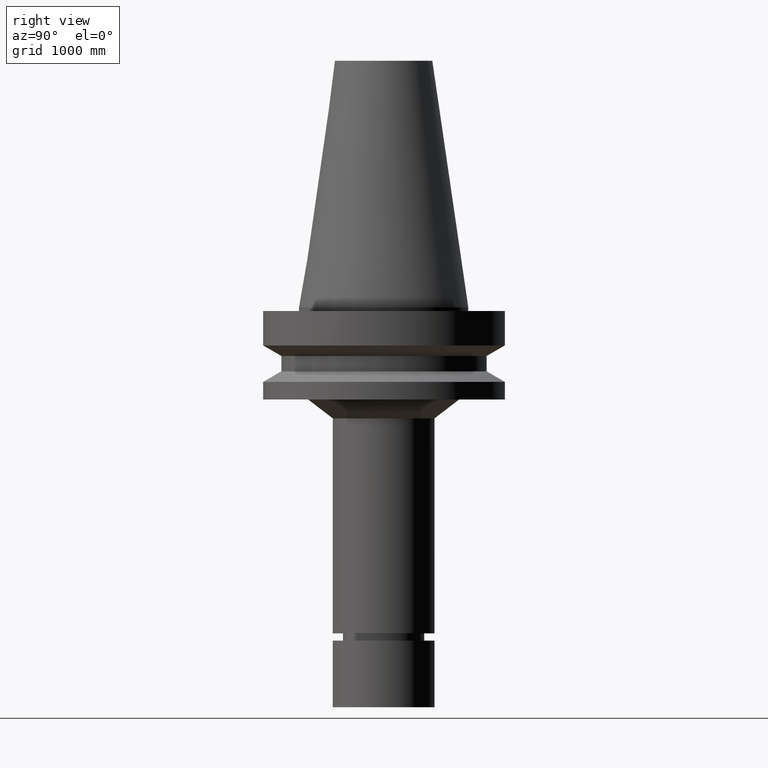
[diagram: clean part render]
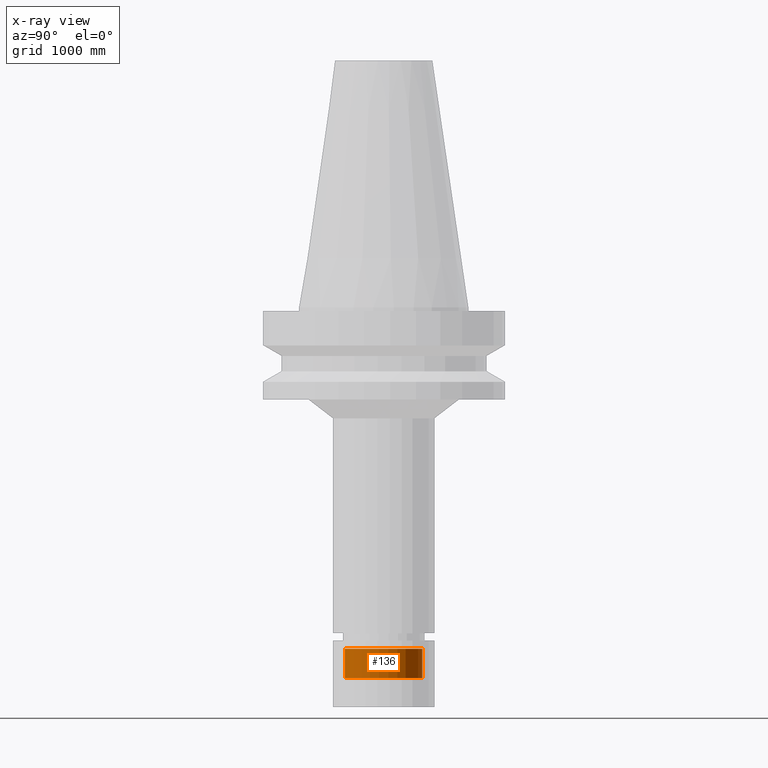
[diagram: x-ray — body ghosted, one internal face saturated and labeled with its STEP entity id]
A machine part, right view, then the same camera in x-ray: the body is ghosted and one INTERNAL B-rep face — a face not visible from any outside direction — is saturated and labeled: STEP entity #136.
In plain terms, the highlighted cylindrical surface (bore or boss wall) has radius 406.4 mm, axis along (-0, -0, 1).
Its self-contained STEP definition (entity closure, byte-faithful):
#125=EDGE_CURVE('Unnamed[1]',#276,#276,#277,.T.);
#136=ADVANCED_FACE('Unnamed[1]',(#293,#294),#295,.T.);
#173=EDGE_CURVE('Unnamed[1]',#351,#351,#352,.T.);
#276=VERTEX_POINT('',#469);
#277=CIRCLE('',#470,16.0);
#293=FACE_BOUND('',#490,.T.);
#294=FACE_BOUND('',#491,.T.);
#295=CYLINDRICAL_SURFACE('',#492,16.0);
#351=VERTEX_POINT('',#563);
#352=CIRCLE('',#564,16.0);
#469=CARTESIAN_POINT('',(9.36210294914078E-015,16.0,-152.894744111674));
#470=AXIS2_PLACEMENT_3D('',#661,#662,#663);
#490=EDGE_LOOP('',(#680));
#491=EDGE_LOOP('',(#681));
#492=AXIS2_PLACEMENT_3D('',#682,#683,#684);
#563=CARTESIAN_POINT('',(8.62765737002817E-015,16.0,-140.90033756729));
#564=AXIS2_PLACEMENT_3D('',#746,#747,#748);
#661=CARTESIAN_POINT('',(9.36210294914078E-015,1.99723255066935E-014,-152.894744111674));
#662=DIRECTION('',(-6.12323399573677E-017,-2.72265846766751E-017,1.0));
#663=DIRECTION('',(-6.49430021956923E-033,1.0,2.72265846766751E-017));
#680=ORIENTED_EDGE('',*,*,#173,.F.);
#681=ORIENTED_EDGE('',*,*,#125,.T.);
#682=CARTESIAN_POINT('',(8.99488015958447E-015,1.98090421439802E-014,-146.897540839482));
#683=DIRECTION('',(-6.12323399573677E-017,-2.72265846766751E-017,1.0));
#684=DIRECTION('',(-6.49430021956362E-033,1.0,2.72265846766751E-017));
#746=CARTESIAN_POINT('',(8.62765737002817E-015,1.96457587812668E-014,-140.90033756729));
#747=DIRECTION('',(-6.12323399573677E-017,-2.72265846766751E-017,1.0));
#748=DIRECTION('',(-6.49430021956362E-033,1.0,2.72265846766751E-017));